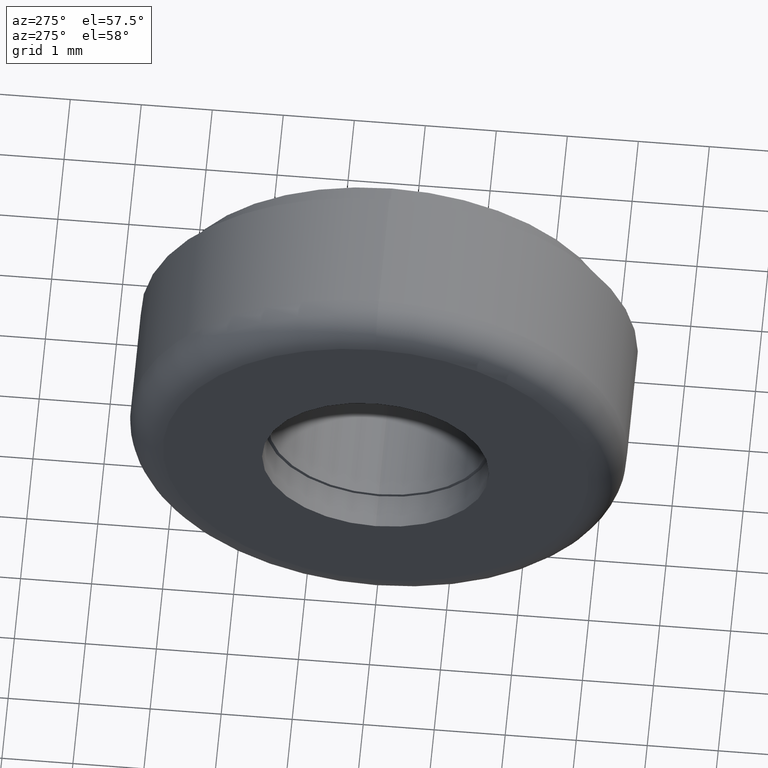
[diagram: clean part render]
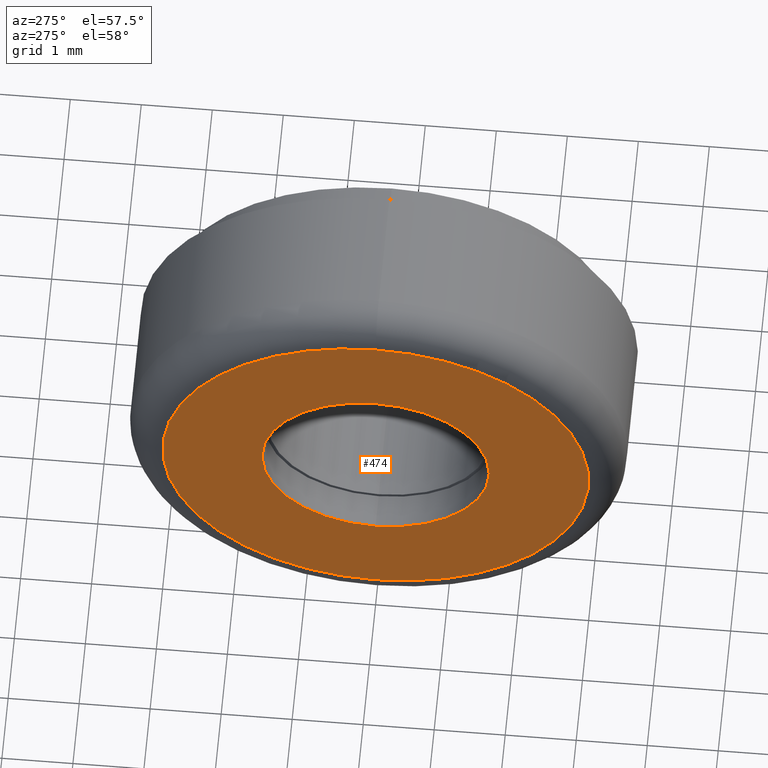
[diagram: same view with one face highlighted and labeled with its STEP entity id]
A machine part, auxiliary view. The second image highlights one B-rep face of the part: STEP entity #474.
In plain terms, the highlighted planar face has unit normal (1, 0, 0).
Its self-contained STEP definition (entity closure, byte-faithful):
#10 = PLANE ( 'NONE',  #467 ) ;
#19 = CARTESIAN_POINT ( 'NONE',  ( 0.0000000000000000000, 0.0000000000000000000, 0.0000000000000000000 ) ) ;
#38 = EDGE_CURVE ( 'NONE', #630, #434, #161, .T. ) ;
#65 = CARTESIAN_POINT ( 'NONE',  ( 0.0000000000000000000, 3.980102097228897700E-016, 3.000000000000000000 ) ) ;
#66 = ORIENTED_EDGE ( 'NONE', *, *, #451, .T. ) ;
#74 = EDGE_LOOP ( 'NONE', ( #66, #579 ) ) ;
#87 = EDGE_LOOP ( 'NONE', ( #624, #611 ) ) ;
#161 = CIRCLE ( 'NONE', #458, 3.000000000000000000 ) ;
#221 = VERTEX_POINT ( 'NONE', #382 ) ;
#224 = DIRECTION ( 'NONE',  ( -1.000000000000000000, -0.0000000000000000000, -0.0000000000000000000 ) ) ;
#227 = DIRECTION ( 'NONE',  ( 0.0000000000000000000, 0.0000000000000000000, -1.000000000000000000 ) ) ;
#278 = CARTESIAN_POINT ( 'NONE',  ( 0.0000000000000000000, 0.0000000000000000000, -3.000000000000000000 ) ) ;
#279 = CARTESIAN_POINT ( 'NONE',  ( 0.0000000000000000000, 0.0000000000000000000, 0.0000000000000000000 ) ) ;
#305 = DIRECTION ( 'NONE',  ( 1.000000000000000000, 0.0000000000000000000, 0.0000000000000000000 ) ) ;
#315 = AXIS2_PLACEMENT_3D ( 'NONE', #279, #224, #608 ) ;
#333 = CIRCLE ( 'NONE', #343, 1.600000000000000100 ) ;
#340 = EDGE_CURVE ( 'NONE', #565, #221, #435, .T. ) ;
#343 = AXIS2_PLACEMENT_3D ( 'NONE', #19, #305, #710 ) ;
#382 = CARTESIAN_POINT ( 'NONE',  ( 0.0000000000000000000, 0.0000000000000000000, 1.600000000000000100 ) ) ;
#389 = DIRECTION ( 'NONE',  ( -1.000000000000000000, -0.0000000000000000000, -0.0000000000000000000 ) ) ;
#398 = CARTESIAN_POINT ( 'NONE',  ( 0.0000000000000000000, 0.0000000000000000000, 0.0000000000000000000 ) ) ;
#413 = DIRECTION ( 'NONE',  ( 0.0000000000000000000, 0.0000000000000000000, -1.000000000000000000 ) ) ;
#434 = VERTEX_POINT ( 'NONE', #278 ) ;
#435 = CIRCLE ( 'NONE', #688, 1.600000000000000100 ) ;
#445 = DIRECTION ( 'NONE',  ( 0.0000000000000000000, 0.0000000000000000000, -1.000000000000000000 ) ) ;
#451 = EDGE_CURVE ( 'NONE', #434, #630, #514, .T. ) ;
#458 = AXIS2_PLACEMENT_3D ( 'NONE', #659, #389, #445 ) ;
#467 = AXIS2_PLACEMENT_3D ( 'NONE', #398, #557, #227 ) ;
#474 = ADVANCED_FACE ( 'NONE', ( #488, #644 ), #10, .F. ) ;
#488 = FACE_BOUND ( 'NONE', #87, .T. ) ;
#504 = DIRECTION ( 'NONE',  ( 1.000000000000000000, 0.0000000000000000000, 0.0000000000000000000 ) ) ;
#514 = CIRCLE ( 'NONE', #315, 3.000000000000000000 ) ;
#557 = DIRECTION ( 'NONE',  ( 1.000000000000000000, 0.0000000000000000000, 0.0000000000000000000 ) ) ;
#565 = VERTEX_POINT ( 'NONE', #692 ) ;
#579 = ORIENTED_EDGE ( 'NONE', *, *, #38, .T. ) ;
#608 = DIRECTION ( 'NONE',  ( 0.0000000000000000000, 0.0000000000000000000, -1.000000000000000000 ) ) ;
#611 = ORIENTED_EDGE ( 'NONE', *, *, #340, .T. ) ;
#620 = CARTESIAN_POINT ( 'NONE',  ( 0.0000000000000000000, 0.0000000000000000000, 0.0000000000000000000 ) ) ;
#624 = ORIENTED_EDGE ( 'NONE', *, *, #687, .T. ) ;
#630 = VERTEX_POINT ( 'NONE', #65 ) ;
#644 = FACE_OUTER_BOUND ( 'NONE', #74, .T. ) ;
#659 = CARTESIAN_POINT ( 'NONE',  ( 0.0000000000000000000, 0.0000000000000000000, 0.0000000000000000000 ) ) ;
#687 = EDGE_CURVE ( 'NONE', #221, #565, #333, .T. ) ;
#688 = AXIS2_PLACEMENT_3D ( 'NONE', #620, #504, #413 ) ;
#692 = CARTESIAN_POINT ( 'NONE',  ( 0.0000000000000000000, 1.959434878635765200E-016, -1.600000000000000100 ) ) ;
#710 = DIRECTION ( 'NONE',  ( 0.0000000000000000000, 0.0000000000000000000, -1.000000000000000000 ) ) ;